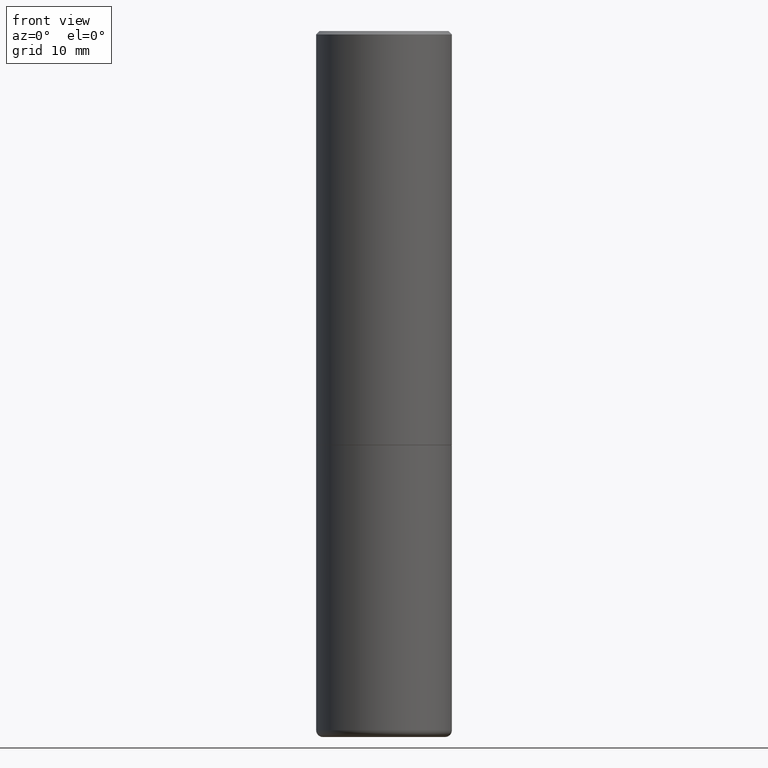
[diagram: clean part render]
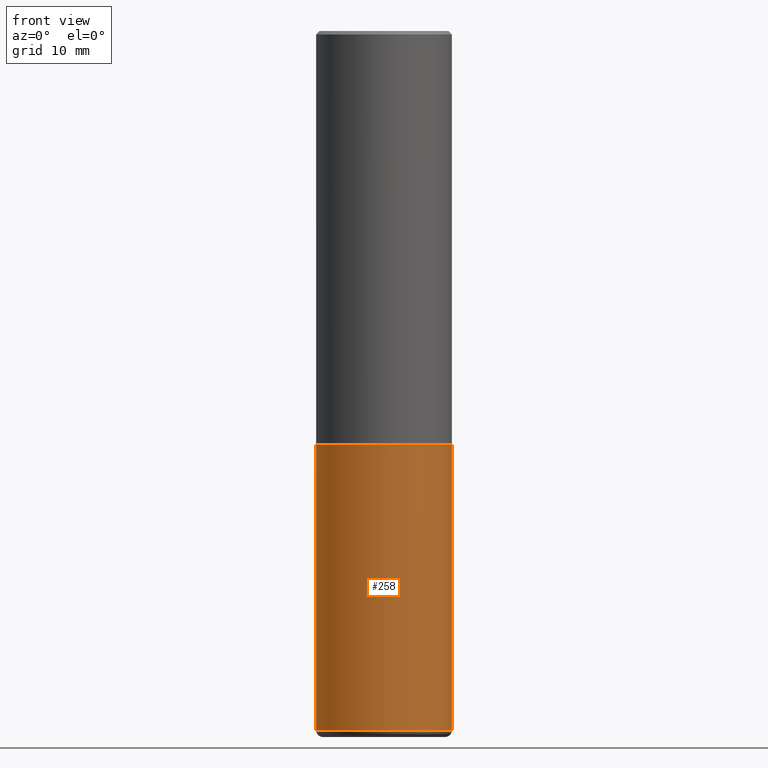
[diagram: same view with one face highlighted and labeled with its STEP entity id]
A machine part, front view. The second image highlights one B-rep face of the part: STEP entity #258.
In plain terms, the highlighted cylindrical surface (partial cylindrical patch) has radius 10 mm, axis along (-0, 0, 1).
Its self-contained STEP definition (entity closure, byte-faithful):
#6 = CIRCLE ( 'NONE', #156, 0.3937000000000000499 ) ;
#15 = CYLINDRICAL_SURFACE ( 'NONE', #49, 0.3937000000000000499 ) ;
#17 = VERTEX_POINT ( 'NONE', #366 ) ;
#33 = DIRECTION ( 'NONE',  ( -2.445468806185136877E-29, 3.491481338843145188E-15, 1.000000000000000000 ) ) ;
#49 = AXIS2_PLACEMENT_3D ( 'NONE', #396, #243, #123 ) ;
#50 = DIRECTION ( 'NONE',  ( -2.445468806185136877E-29, 3.491481338843145188E-15, 1.000000000000000000 ) ) ;
#52 = EDGE_CURVE ( 'NONE', #135, #147, #305, .T. ) ;
#86 = ORIENTED_EDGE ( 'NONE', *, *, #52, .T. ) ;
#104 = EDGE_CURVE ( 'NONE', #17, #135, #333, .T. ) ;
#105 = DIRECTION ( 'NONE',  ( 1.000000000000000000, -6.982962677686265133E-15, 0.000000000000000000 ) ) ;
#108 = ORIENTED_EDGE ( 'NONE', *, *, #137, .F. ) ;
#123 = DIRECTION ( 'NONE',  ( 1.000000000000000000, -6.982962677686265922E-15, 4.876176775795935793E-29 ) ) ;
#133 = AXIS2_PLACEMENT_3D ( 'NONE', #390, #173, #299 ) ;
#135 = VERTEX_POINT ( 'NONE', #138 ) ;
#137 = EDGE_CURVE ( 'NONE', #238, #147, #6, .T. ) ;
#138 = CARTESIAN_POINT ( 'NONE',  ( 0.3937000000000001054, -1.690749838334792550E-14, -4.055100000000000371 ) ) ;
#147 = VERTEX_POINT ( 'NONE', #363 ) ;
#149 = EDGE_CURVE ( 'NONE', #17, #238, #157, .T. ) ;
#156 = AXIS2_PLACEMENT_3D ( 'NONE', #265, #393, #105 ) ;
#157 = LINE ( 'NONE', #382, #389 ) ;
#173 = DIRECTION ( 'NONE',  ( -2.445468806185136597E-29, 3.491481338843145583E-15, 1.000000000000000000 ) ) ;
#218 = EDGE_LOOP ( 'NONE', ( #418, #337, #86, #108 ) ) ;
#238 = VERTEX_POINT ( 'NONE', #286 ) ;
#243 = DIRECTION ( 'NONE',  ( -2.445468806185136597E-29, 3.491481338843145583E-15, 1.000000000000000000 ) ) ;
#258 = ADVANCED_FACE ( 'NONE', ( #300 ), #15, .T. ) ;
#265 = CARTESIAN_POINT ( 'NONE',  ( 5.873037884934224349E-29, -8.385141583365698841E-15, -2.401600000000000179 ) ) ;
#273 = CARTESIAN_POINT ( 'NONE',  ( 0.3937000000000000499, -2.749192406205083217E-15, 1.919750796630860172E-29 ) ) ;
#285 = VECTOR ( 'NONE', #50, 39.37007874015748143 ) ;
#286 = CARTESIAN_POINT ( 'NONE',  ( -0.3937000000000000499, -8.474317029566754196E-15, -2.401600000000000179 ) ) ;
#299 = DIRECTION ( 'NONE',  ( 1.000000000000000000, -6.982962677686267499E-15, 0.000000000000000000 ) ) ;
#300 = FACE_OUTER_BOUND ( 'NONE', #218, .T. ) ;
#305 = LINE ( 'NONE', #273, #285 ) ;
#333 = CIRCLE ( 'NONE', #133, 0.3937000000000000499 ) ;
#337 = ORIENTED_EDGE ( 'NONE', *, *, #104, .T. ) ;
#363 = CARTESIAN_POINT ( 'NONE',  ( 0.3937000000000000499, -1.113433398957078206E-14, -2.401600000000000179 ) ) ;
#366 = CARTESIAN_POINT ( 'NONE',  ( -0.3937000000000001054, -1.136089922645532513E-14, -4.055100000000000371 ) ) ;
#382 = CARTESIAN_POINT ( 'NONE',  ( -0.3937000000000000499, 2.797406750687514786E-15, -1.936584745033356735E-29 ) ) ;
#389 = VECTOR ( 'NONE', #33, 39.37007874015748143 ) ;
#390 = CARTESIAN_POINT ( 'NONE',  ( 9.916620555961347550E-29, -1.415830597714284070E-14, -4.055100000000000371 ) ) ;
#393 = DIRECTION ( 'NONE',  ( -2.445468806185136597E-29, 3.491481338843145583E-15, 1.000000000000000000 ) ) ;
#396 = CARTESIAN_POINT ( 'NONE',  ( 0.000000000000000000, 0.000000000000000000, 0.000000000000000000 ) ) ;
#418 = ORIENTED_EDGE ( 'NONE', *, *, #149, .F. ) ;